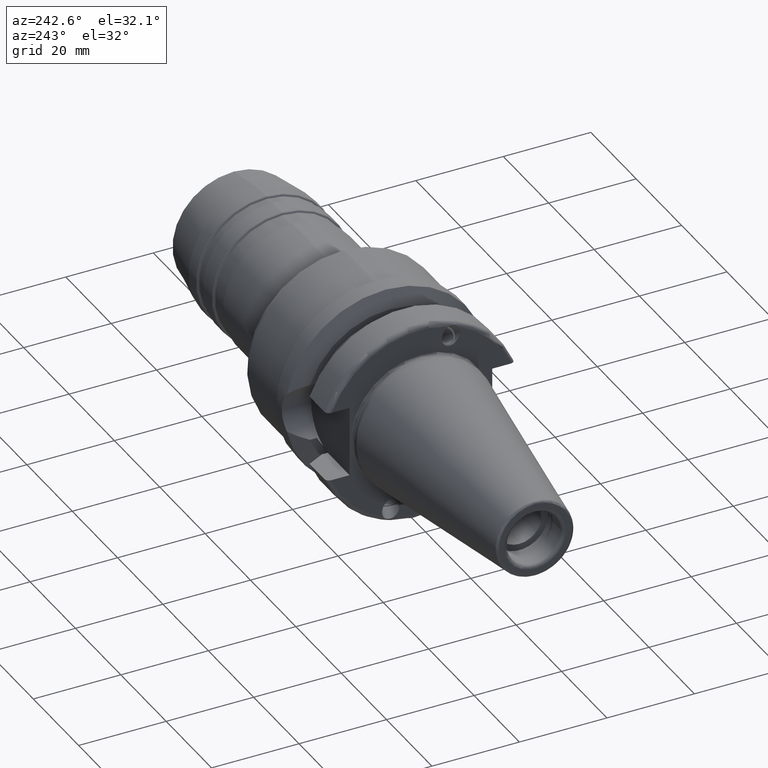
[diagram: clean part render]
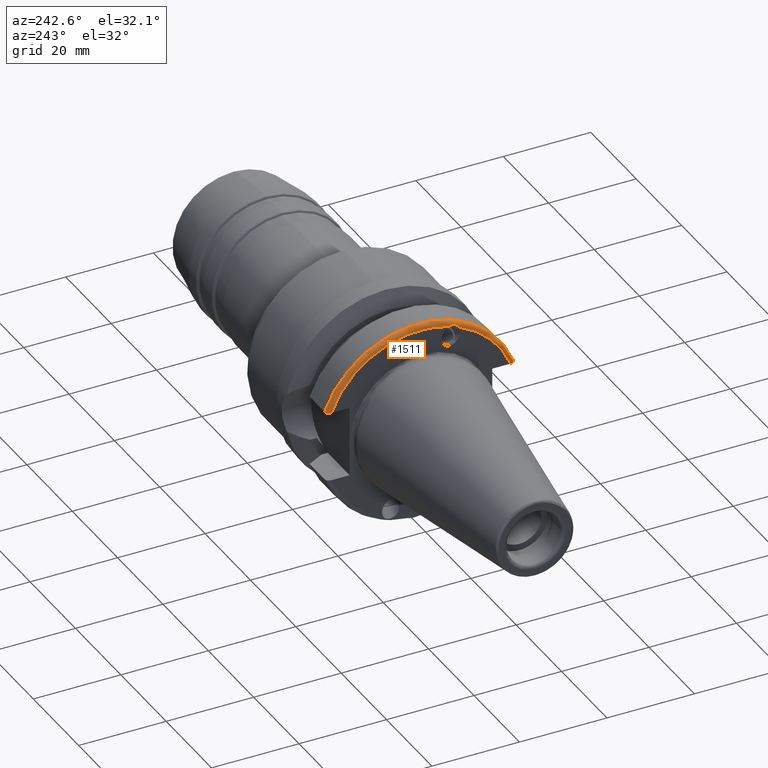
[diagram: same view with one face highlighted and labeled with its STEP entity id]
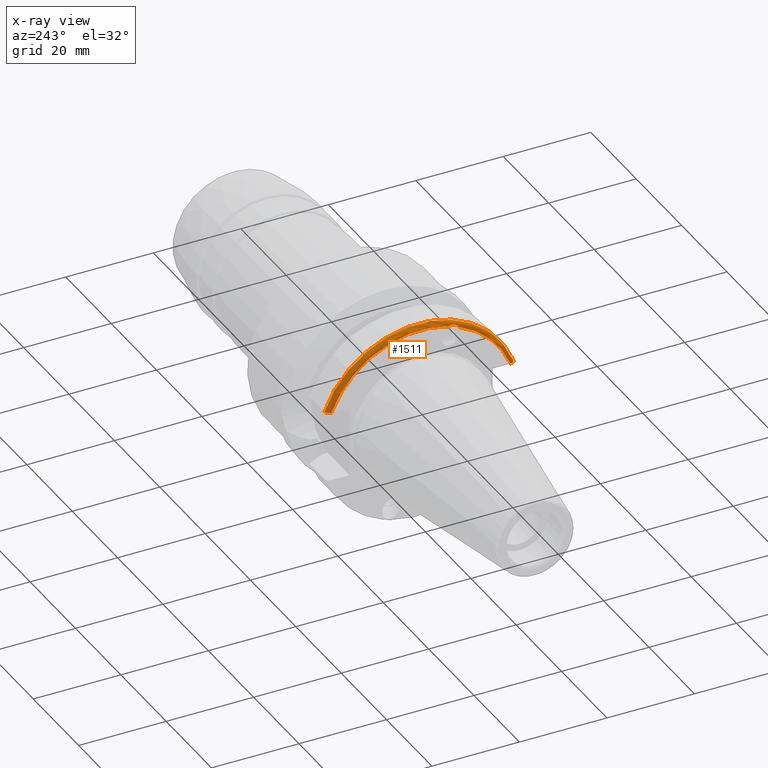
[diagram: x-ray of the same camera — body ghosted, the highlighted face saturated]
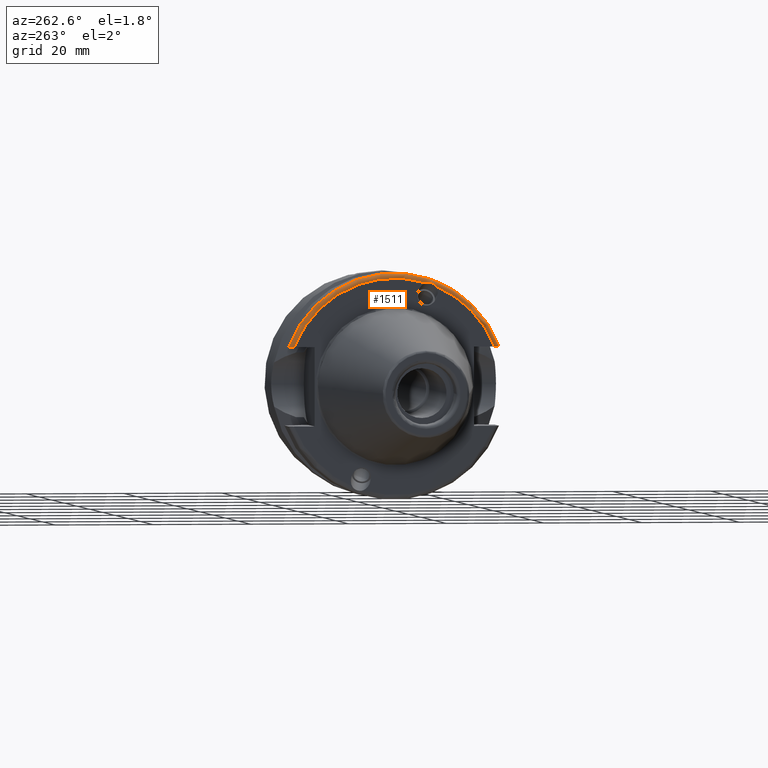
[diagram: same view with one face highlighted and labeled with its STEP entity id]
A machine part, auxiliary view. The second image highlights one B-rep face of the part: STEP entity #1511.
The next image is the same camera in x-ray: the body ghosted, the highlighted face saturated — about 0% of this face is hidden behind the body in this view.
A second angle (auxiliary view) of the same face is appended — the face is thin or edge-on in the first view.
In plain terms, the highlighted toroidal blend (fillet) surface has major radius 22 mm and minor (blend) radius 1 mm.
Its self-contained STEP definition (entity closure, byte-faithful):
#47=B_SPLINE_CURVE_WITH_KNOTS('',3,(#2614,#2615,#2616,#2617,#2618,#2619,
#2620,#2621,#2622,#2623,#2624,#2625,#2626,#2627),.UNSPECIFIED.,.F.,.F.,
(4,2,2,2,2,2,4),(-0.383450132327995,-0.351689221297452,-0.311522341711457,
-0.279107831710627,-0.246818888176222,-0.207066753659403,-0.17359661899964),
 .UNSPECIFIED.);
#50=B_SPLINE_CURVE_WITH_KNOTS('',3,(#2659,#2660,#2661,#2662,#2663,#2664,
#2665,#2666,#2667,#2668),.UNSPECIFIED.,.F.,.F.,(4,2,2,2,4),(-0.153429778670641,
-0.112799364340696,-0.0737022015264941,-0.0362302924551293,0.),
 .UNSPECIFIED.);
#51=B_SPLINE_CURVE_WITH_KNOTS('',3,(#2672,#2673,#2674,#2675,#2676,#2677,
#2678,#2679,#2680,#2681),.UNSPECIFIED.,.F.,.F.,(4,2,2,2,4),(0.,0.0362302924551293,
0.0737022015264941,0.112799364340696,0.153429778670641),.UNSPECIFIED.);
#343=FACE_OUTER_BOUND('',#442,.T.);
#442=EDGE_LOOP('',(#1168,#1169,#1170,#1171,#1172,#1173));
#553=CIRCLE('',#1693,22.);
#554=CIRCLE('',#1694,23.);
#555=CIRCLE('',#1695,22.);
#658=VERTEX_POINT('',#2611);
#659=VERTEX_POINT('',#2613);
#666=VERTEX_POINT('',#2656);
#667=VERTEX_POINT('',#2658);
#668=VERTEX_POINT('',#2669);
#669=VERTEX_POINT('',#2671);
#839=EDGE_CURVE('',#659,#658,#47,.T.);
#849=EDGE_CURVE('',#658,#666,#553,.T.);
#850=EDGE_CURVE('',#666,#667,#50,.T.);
#851=EDGE_CURVE('',#668,#667,#554,.T.);
#852=EDGE_CURVE('',#668,#669,#51,.T.);
#853=EDGE_CURVE('',#669,#659,#555,.T.);
#1168=ORIENTED_EDGE('',*,*,#839,.T.);
#1169=ORIENTED_EDGE('',*,*,#849,.T.);
#1170=ORIENTED_EDGE('',*,*,#850,.T.);
#1171=ORIENTED_EDGE('',*,*,#851,.F.);
#1172=ORIENTED_EDGE('',*,*,#852,.T.);
#1173=ORIENTED_EDGE('',*,*,#853,.T.);
#1463=TOROIDAL_SURFACE('',#1692,22.,1.00000000000001);
#1511=ADVANCED_FACE('',(#343),#1463,.T.);
#1692=AXIS2_PLACEMENT_3D('',#2655,#2045,#2046);
#1693=AXIS2_PLACEMENT_3D('',#2657,#2047,#2048);
#1694=AXIS2_PLACEMENT_3D('',#2670,#2049,#2050);
#1695=AXIS2_PLACEMENT_3D('',#2682,#2051,#2052);
#2045=DIRECTION('center_axis',(1.,1.62798202122572E-21,0.));
#2046=DIRECTION('ref_axis',(0.,-1.22464679914735E-16,1.));
#2047=DIRECTION('center_axis',(1.,1.62798202122572E-21,0.));
#2048=DIRECTION('ref_axis',(0.,0.,-1.));
#2049=DIRECTION('center_axis',(1.,1.62798202122572E-21,0.));
#2050=DIRECTION('ref_axis',(0.,0.,-1.));
#2051=DIRECTION('center_axis',(1.,1.62798202122572E-21,0.));
#2052=DIRECTION('ref_axis',(0.,0.,-1.));
#2611=CARTESIAN_POINT('',(2.,-8.62571963431158,20.2385019403673));
#2613=CARTESIAN_POINT('',(2.,-6.40137369211844,21.0480976540364));
#2614=CARTESIAN_POINT('Ctrl Pts',(1.99999999999999,-6.40137369211843,21.0480976540364));
#2615=CARTESIAN_POINT('Ctrl Pts',(1.99999999999999,-6.51218075217938,21.0925664729134));
#2616=CARTESIAN_POINT('Ctrl Pts',(2.00839141698565,-6.63253750523298,21.1250853644164));
#2617=CARTESIAN_POINT('Ctrl Pts',(2.03416784761473,-6.92628989879232,21.1651926793778));
#2618=CARTESIAN_POINT('Ctrl Pts',(2.05162151175562,-7.09315183259906,21.162330113209));
#2619=CARTESIAN_POINT('Ctrl Pts',(2.07231112910131,-7.39163000172573,21.11847888572));
#2620=CARTESIAN_POINT('Ctrl Pts',(2.07774372051908,-7.5231912636471,21.0850375933111));
#2621=CARTESIAN_POINT('Ctrl Pts',(2.07808045348674,-7.77713511641415,20.9935506719207));
#2622=CARTESIAN_POINT('Ctrl Pts',(2.07302683632531,-7.89936063694557,20.9356688169512));
#2623=CARTESIAN_POINT('Ctrl Pts',(2.05309217981779,-8.1555578080587,20.7805312349047));
#2624=CARTESIAN_POINT('Ctrl Pts',(2.03606073743508,-8.28494218361156,20.6777578738726));
#2625=CARTESIAN_POINT('Ctrl Pts',(2.00930022600956,-8.49059272091541,20.45672733736));
#2626=CARTESIAN_POINT('Ctrl Pts',(1.99999999999999,-8.56640089026482,20.349439718379));
#2627=CARTESIAN_POINT('Ctrl Pts',(1.99999999999999,-8.6257196343116,20.2385019403673));
#2655=CARTESIAN_POINT('Origin',(2.99999999999999,2.08174045357391E-15,0.));
#2656=CARTESIAN_POINT('',(2.,-20.4743131752936,8.05));
#2657=CARTESIAN_POINT('Origin',(2.,2.08173882559189E-15,0.));
#2658=CARTESIAN_POINT('',(2.99999999999999,-21.5452430944745,8.05));
#2659=CARTESIAN_POINT('Ctrl Pts',(1.99999999999999,-20.4743131752936,8.05));
#2660=CARTESIAN_POINT('Ctrl Pts',(1.99999999999999,-20.6097478897267,8.05));
#2661=CARTESIAN_POINT('Ctrl Pts',(2.03008808262398,-20.7694601196341,8.05));
#2662=CARTESIAN_POINT('Ctrl Pts',(2.128361602777,-21.0163810455414,8.05));
#2663=CARTESIAN_POINT('Ctrl Pts',(2.21218447849375,-21.1484080721249,8.05));
#2664=CARTESIAN_POINT('Ctrl Pts',(2.38899751698434,-21.3324722583086,8.05));
#2665=CARTESIAN_POINT('Ctrl Pts',(2.51168046915071,-21.4185837950444,8.05));
#2666=CARTESIAN_POINT('Ctrl Pts',(2.73736392622753,-21.5156543568949,8.05));
#2667=CARTESIAN_POINT('Ctrl Pts',(2.8792323584829,-21.5452430944745,8.05));
#2668=CARTESIAN_POINT('Ctrl Pts',(2.99999999999999,-21.5452430944745,8.05));
#2669=CARTESIAN_POINT('',(2.99999999999999,21.5452430944745,8.05));
#2670=CARTESIAN_POINT('Origin',(2.99999999999999,2.08174045357391E-15,0.));
#2671=CARTESIAN_POINT('',(2.,20.4743131752936,8.05));
#2672=CARTESIAN_POINT('Ctrl Pts',(2.99999999999999,21.5452430944745,8.05));
#2673=CARTESIAN_POINT('Ctrl Pts',(2.8792323584829,21.5452430944745,8.05));
#2674=CARTESIAN_POINT('Ctrl Pts',(2.73736392622753,21.5156543568949,8.05));
#2675=CARTESIAN_POINT('Ctrl Pts',(2.51168046915071,21.4185837950444,8.05));
#2676=CARTESIAN_POINT('Ctrl Pts',(2.38899751698434,21.3324722583086,8.05));
#2677=CARTESIAN_POINT('Ctrl Pts',(2.21218447849375,21.1484080721249,8.05));
#2678=CARTESIAN_POINT('Ctrl Pts',(2.128361602777,21.0163810455414,8.05));
#2679=CARTESIAN_POINT('Ctrl Pts',(2.03008808262398,20.7694601196341,8.05));
#2680=CARTESIAN_POINT('Ctrl Pts',(1.99999999999999,20.6097478897267,8.05));
#2681=CARTESIAN_POINT('Ctrl Pts',(1.99999999999999,20.4743131752936,8.05));
#2682=CARTESIAN_POINT('Origin',(2.,2.08173882559189E-15,0.));